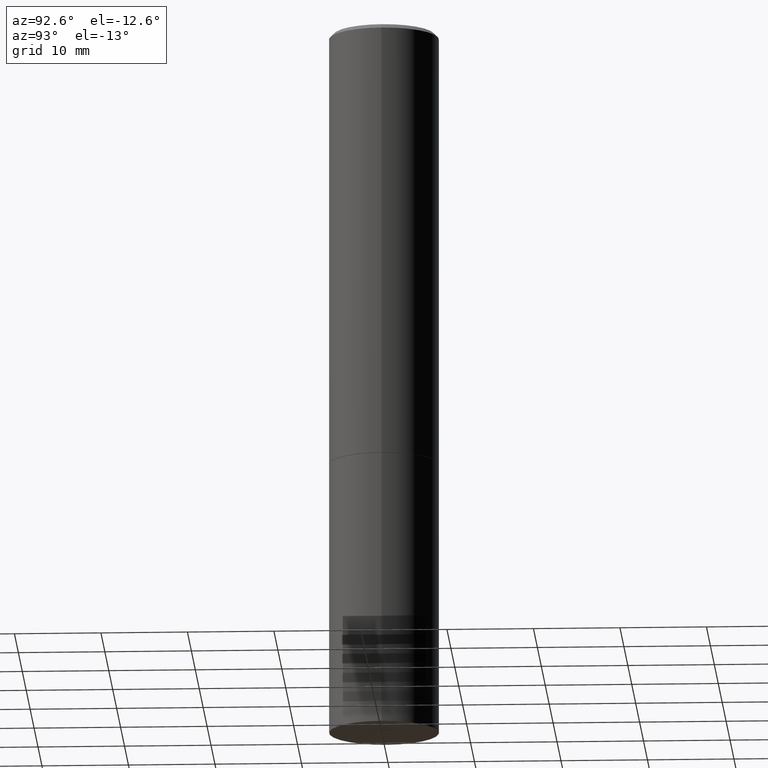
[diagram: clean part render]
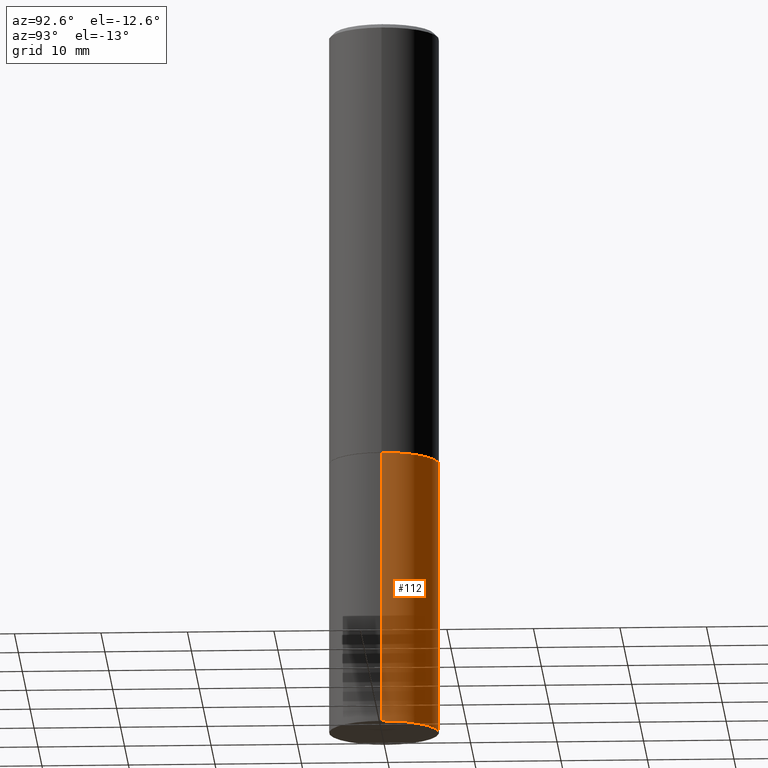
[diagram: same view with one face highlighted and labeled with its STEP entity id]
A machine part, auxiliary view. The second image highlights one B-rep face of the part: STEP entity #112.
In plain terms, the highlighted cylindrical surface (partial cylindrical patch) has radius 6.35 mm, axis along (-0, 0, 1).
Its self-contained STEP definition (entity closure, byte-faithful):
#9 = CARTESIAN_POINT ( 'NONE',  ( 7.947773620101693940E-29, -1.134731435124022443E-14, -3.250000000000000000 ) ) ;
#11 = ORIENTED_EDGE ( 'NONE', *, *, #137, .T. ) ;
#22 = EDGE_CURVE ( 'NONE', #348, #157, #161, .T. ) ;
#53 = DIRECTION ( 'NONE',  ( -2.445468806185136597E-29, 3.491481338843145583E-15, 1.000000000000000000 ) ) ;
#70 = CIRCLE ( 'NONE', #351, 0.2500000000000000000 ) ;
#72 = CARTESIAN_POINT ( 'NONE',  ( -0.2500000000000000000, -7.388781675063007725E-15, -3.250000000000000000 ) ) ;
#77 = DIRECTION ( 'NONE',  ( 1.000000000000000000, -6.982962677686266711E-15, 4.876176775795935793E-29 ) ) ;
#78 = VERTEX_POINT ( 'NONE', #72 ) ;
#98 = DIRECTION ( 'NONE',  ( -2.445468806185136597E-29, 3.491481338843145583E-15, 1.000000000000000000 ) ) ;
#112 = ADVANCED_FACE ( 'NONE', ( #147 ), #341, .T. ) ;
#118 = AXIS2_PLACEMENT_3D ( 'NONE', #305, #98, #329 ) ;
#126 = DIRECTION ( 'NONE',  ( -2.445468806185136877E-29, 3.491481338843145188E-15, 1.000000000000000000 ) ) ;
#137 = EDGE_CURVE ( 'NONE', #78, #157, #146, .T. ) ;
#146 = LINE ( 'NONE', #207, #320 ) ;
#147 = FACE_OUTER_BOUND ( 'NONE', #350, .T. ) ;
#152 = DIRECTION ( 'NONE',  ( 1.000000000000000000, -6.982962677686262766E-15, 0.000000000000000000 ) ) ;
#157 = VERTEX_POINT ( 'NONE', #346 ) ;
#161 = CIRCLE ( 'NONE', #118, 0.2500000000000000000 ) ;
#183 = LINE ( 'NONE', #249, #198 ) ;
#198 = VECTOR ( 'NONE', #126, 39.37007874015748143 ) ;
#207 = CARTESIAN_POINT ( 'NONE',  ( -0.2500000000000000000, 1.776356839400250465E-15, -1.229733772563726445E-29 ) ) ;
#213 = EDGE_CURVE ( 'NONE', #269, #78, #70, .T. ) ;
#236 = CARTESIAN_POINT ( 'NONE',  ( 0.000000000000000000, 0.000000000000000000, 0.000000000000000000 ) ) ;
#244 = ORIENTED_EDGE ( 'NONE', *, *, #355, .F. ) ;
#249 = CARTESIAN_POINT ( 'NONE',  ( 0.2500000000000000000, -1.745740669421566678E-15, 1.219044193948983948E-29 ) ) ;
#250 = CARTESIAN_POINT ( 'NONE',  ( 0.2500000000000000000, -1.309305502066178953E-14, -3.250000000000000000 ) ) ;
#260 = ORIENTED_EDGE ( 'NONE', *, *, #213, .T. ) ;
#263 = DIRECTION ( 'NONE',  ( -2.445468806185136877E-29, 3.491481338843145188E-15, 1.000000000000000000 ) ) ;
#269 = VERTEX_POINT ( 'NONE', #250 ) ;
#271 = CARTESIAN_POINT ( 'NONE',  ( 0.2500000000000000000, -8.728703347107857054E-15, -2.000000000000000000 ) ) ;
#281 = AXIS2_PLACEMENT_3D ( 'NONE', #236, #53, #77 ) ;
#305 = CARTESIAN_POINT ( 'NONE',  ( 4.890937612370273194E-29, -6.982962677686291165E-15, -2.000000000000000000 ) ) ;
#320 = VECTOR ( 'NONE', #263, 39.37007874015748143 ) ;
#329 = DIRECTION ( 'NONE',  ( 1.000000000000000000, -6.982962677686266711E-15, 0.000000000000000000 ) ) ;
#341 = CYLINDRICAL_SURFACE ( 'NONE', #281, 0.2500000000000000000 ) ;
#344 = DIRECTION ( 'NONE',  ( -2.445468806185136597E-29, 3.491481338843145583E-15, 1.000000000000000000 ) ) ;
#346 = CARTESIAN_POINT ( 'NONE',  ( -0.2500000000000000000, -7.388781675063007725E-15, -2.000000000000000000 ) ) ;
#348 = VERTEX_POINT ( 'NONE', #271 ) ;
#350 = EDGE_LOOP ( 'NONE', ( #260, #11, #359, #244 ) ) ;
#351 = AXIS2_PLACEMENT_3D ( 'NONE', #9, #344, #152 ) ;
#355 = EDGE_CURVE ( 'NONE', #269, #348, #183, .T. ) ;
#359 = ORIENTED_EDGE ( 'NONE', *, *, #22, .F. ) ;